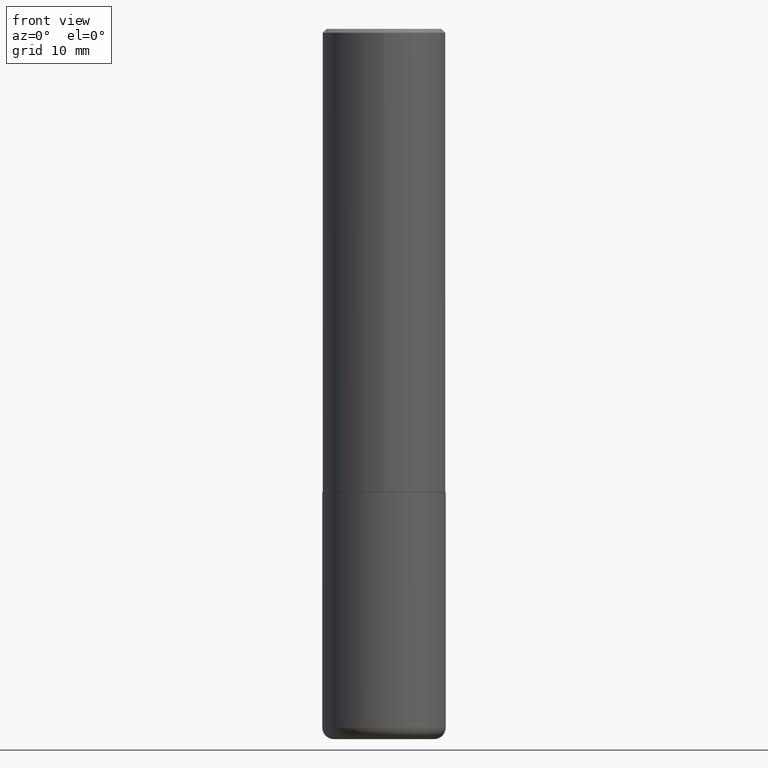
[diagram: clean part render]
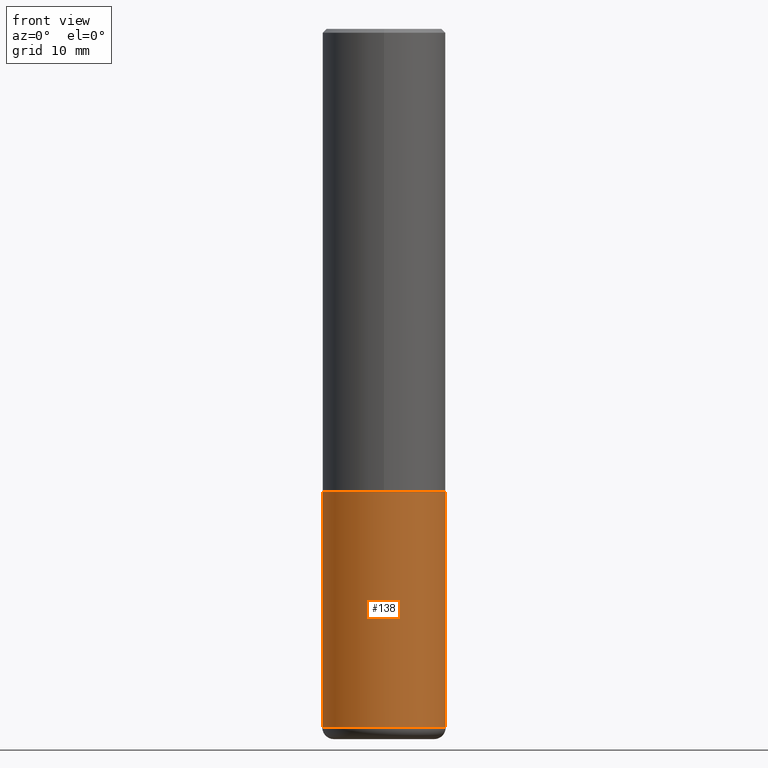
[diagram: same view with one face highlighted and labeled with its STEP entity id]
A machine part, front view. The second image highlights one B-rep face of the part: STEP entity #138.
In plain terms, the highlighted cylindrical surface (partial cylindrical patch) has radius 7.9997 mm, axis along (-0, 0, 1).
Its self-contained STEP definition (entity closure, byte-faithful):
#5 = VECTOR ( 'NONE', #63, 39.37007874015748143 ) ;
#9 = ORIENTED_EDGE ( 'NONE', *, *, #122, .F. ) ;
#15 = CARTESIAN_POINT ( 'NONE',  ( 0.3149500000000000077, -1.044686131395256792E-14, -2.362199999999999633 ) ) ;
#17 = VERTEX_POINT ( 'NONE', #15 ) ;
#27 = CIRCLE ( 'NONE', #120, 0.3149500000000000077 ) ;
#49 = ORIENTED_EDGE ( 'NONE', *, *, #353, .T. ) ;
#59 = DIRECTION ( 'NONE',  ( -2.445468806185136877E-29, 3.491481338843145188E-15, 1.000000000000000000 ) ) ;
#63 = DIRECTION ( 'NONE',  ( -2.445468806185136877E-29, 3.491481338843145188E-15, 1.000000000000000000 ) ) ;
#65 = CARTESIAN_POINT ( 'NONE',  ( -0.3149500000000000077, -8.104611675644729966E-15, -2.362199999999999633 ) ) ;
#66 = ORIENTED_EDGE ( 'NONE', *, *, #218, .F. ) ;
#69 = CIRCLE ( 'NONE', #310, 0.3149500000000000632 ) ;
#90 = CARTESIAN_POINT ( 'NONE',  ( 0.000000000000000000, 0.000000000000000000, 0.000000000000000000 ) ) ;
#101 = VERTEX_POINT ( 'NONE', #188 ) ;
#112 = VERTEX_POINT ( 'NONE', #284 ) ;
#117 = CYLINDRICAL_SURFACE ( 'NONE', #184, 0.3149500000000000077 ) ;
#118 = LINE ( 'NONE', #155, #5 ) ;
#120 = AXIS2_PLACEMENT_3D ( 'NONE', #239, #330, #169 ) ;
#122 = EDGE_CURVE ( 'NONE', #101, #361, #183, .T. ) ;
#138 = ADVANCED_FACE ( 'NONE', ( #388 ), #117, .T. ) ;
#140 = EDGE_CURVE ( 'NONE', #112, #17, #118, .T. ) ;
#155 = CARTESIAN_POINT ( 'NONE',  ( 0.3149500000000000077, -2.199284095337289871E-15, 1.535751875536930130E-29 ) ) ;
#169 = DIRECTION ( 'NONE',  ( 1.000000000000000000, -6.982962677686266711E-15, 0.000000000000000000 ) ) ;
#183 = LINE ( 'NONE', #350, #189 ) ;
#184 = AXIS2_PLACEMENT_3D ( 'NONE', #90, #356, #352 ) ;
#188 = CARTESIAN_POINT ( 'NONE',  ( -0.3149500000000001743, -1.019950047895061313E-14, -3.562199999999999367 ) ) ;
#189 = VECTOR ( 'NONE', #59, 39.37007874015748143 ) ;
#218 = EDGE_CURVE ( 'NONE', #361, #17, #27, .T. ) ;
#230 = DIRECTION ( 'NONE',  ( -2.445468806185136597E-29, 3.491481338843145583E-15, 1.000000000000000000 ) ) ;
#239 = CARTESIAN_POINT ( 'NONE',  ( 5.776686413970529753E-29, -8.247577218615278049E-15, -2.362199999999999633 ) ) ;
#284 = CARTESIAN_POINT ( 'NONE',  ( 0.3149500000000001743, -1.463663892056434215E-14, -3.562199999999999367 ) ) ;
#299 = EDGE_LOOP ( 'NONE', ( #9, #49, #371, #66 ) ) ;
#310 = AXIS2_PLACEMENT_3D ( 'NONE', #391, #230, #360 ) ;
#330 = DIRECTION ( 'NONE',  ( -2.445468806185136597E-29, 3.491481338843145583E-15, 1.000000000000000000 ) ) ;
#350 = CARTESIAN_POINT ( 'NONE',  ( -0.3149500000000000077, 2.237854346276435590E-15, -1.549218606675782676E-29 ) ) ;
#352 = DIRECTION ( 'NONE',  ( 1.000000000000000000, -6.982962677686266711E-15, 4.876176775795936353E-29 ) ) ;
#353 = EDGE_CURVE ( 'NONE', #101, #112, #69, .T. ) ;
#356 = DIRECTION ( 'NONE',  ( -2.445468806185136597E-29, 3.491481338843145583E-15, 1.000000000000000000 ) ) ;
#360 = DIRECTION ( 'NONE',  ( 1.000000000000000000, -6.982962677686268288E-15, 0.000000000000000000 ) ) ;
#361 = VERTEX_POINT ( 'NONE', #65 ) ;
#371 = ORIENTED_EDGE ( 'NONE', *, *, #140, .T. ) ;
#388 = FACE_OUTER_BOUND ( 'NONE', #299, .T. ) ;
#391 = CARTESIAN_POINT ( 'NONE',  ( 8.711248981392691651E-29, -1.243735482522705070E-14, -3.562199999999999367 ) ) ;